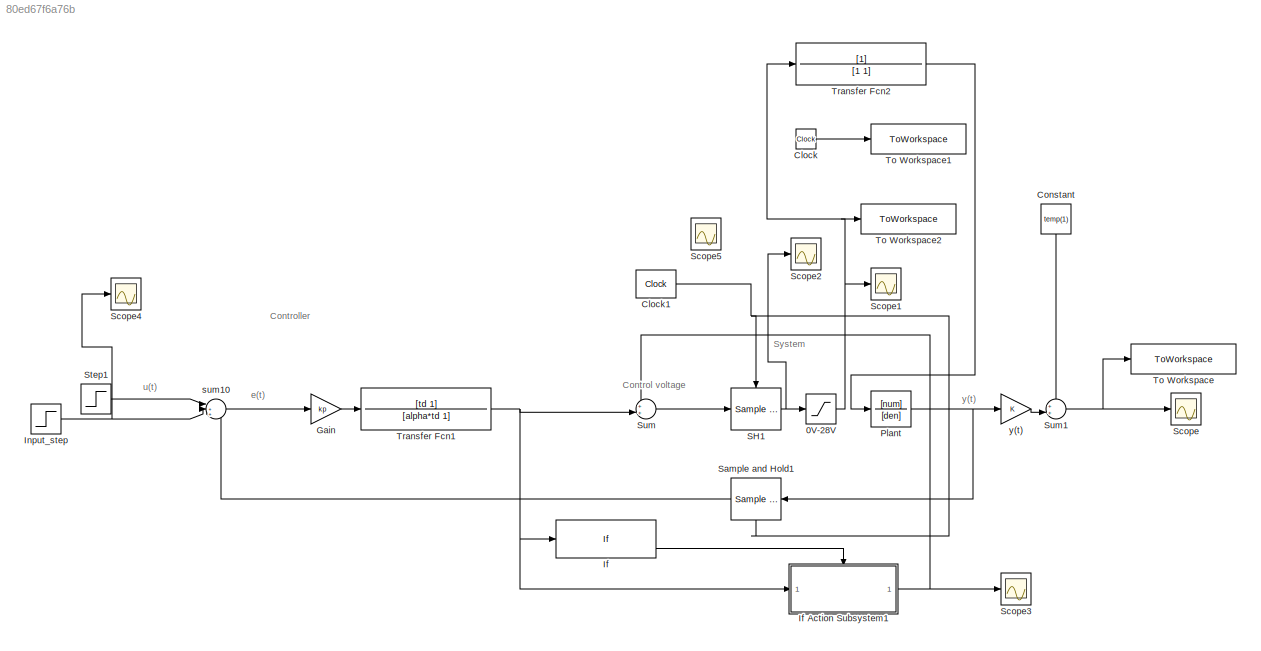
MODEL slx_80ed67f6a76b
KIND model
CONFIG AbsTol = auto
CONFIG EnableMultiTasking = off
CONFIG FixedStep = auto
CONFIG MaxStep = auto
CONFIG MinStep = auto
CONFIG RelTol = 1e-3
CONFIG SampleTimeConstraint = Unconstrained
CONFIG SolverName = VariableStepAuto
CONFIG StartTime = 0.0
CONFIG StopTime = 1200
BLOCK [Saturate] 0V-28V
  LowerLimit = 0
  UpperLimit = 28
BLOCK [Clock] Clock
  Commented = on
BLOCK [Reference] Clock1  REF=simulink_extras/Flip Flops/Clock
  Ports = [0, 1]
  SourceBlock = simulink_extras/Flip Flops/Clock
  SourceProductBaseCode = SL
  SourceType = Digital clock
BLOCK [Constant] Constant
  NameLocation = left
  Value = temp(1)
BLOCK [Gain] Gain
  Gain = kp
BLOCK [If] If
  ElseIfExpressions = u1 < 0
  IfExpression = u1 > 28
  Ports = [1, 3]
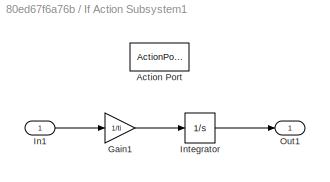
BLOCK [SubSystem] If Action Subsystem1
  Ports = [1, 1, 0, 0, 0, 0, 0, 1]
  RequestExecContextInheritance = off
  TreatAsAtomicUnit = on
BLOCK [ActionPort] If Action Subsystem1/Action Port
  ActionPortLabel = else
BLOCK [Gain] If Action Subsystem1/Gain1
  Gain = 1/ti
BLOCK [Inport] If Action Subsystem1/In1
BLOCK [Integrator] If Action Subsystem1/Integrator
  Ports = [1, 1]
BLOCK [Outport] If Action Subsystem1/Out1
BLOCK [Step] Input_step
  After = set_temp
  SampleTime = 0
BLOCK [TransferFcn] Plant
  Denominator = [den]
  Numerator = [num]
BLOCK [Reference] SH1  REF=dspsigops/Sample
and Hold
  Ports = [1, 1, 0, 1]
  SourceBlock = dspsigops/Sample\nand Hold
  SourceProductBaseCode = DS
  SourceType = Sample and Hold
BLOCK [Reference] Sample and Hold1  REF=dspsigops/Sample
and Hold
  NameLocation = top
  Ports = [1, 1, 0, 1]
  SourceBlock = dspsigops/Sample\nand Hold
  SourceProductBaseCode = DS
  SourceType = Sample and Hold
BLOCK [Scope] Scope
  Floating = off
  NumInputPorts = 1
  Ports = [1]
  ScopeSpecificationString = Simulink.scopes.TimeScopeBlockCfg('CurrentConfiguration', extmgr.ConfigurationSet(extmgr.Configuration('Core','General UI',true),extmgr.Configuration('Core','Source UI',true),extmgr.Configuration('Sources','WiredSimulink',true),extmgr.Configuration('Visuals','Time Domain',true,'SerializedDisplays',{struct('MinYLimReal','4.38013','MaxYLimReal','228.67881','YLabelReal','','MinYLimMag','4.38013','Max...<+1423ch>
BLOCK [Scope] Scope1
  Floating = off
  NumInputPorts = 1
  Ports = [1]
  ScopeSpecificationString = Simulink.scopes.TimeScopeBlockCfg('CurrentConfiguration', extmgr.ConfigurationSet(extmgr.Configuration('Core','General UI',true),extmgr.Configuration('Core','Source UI',true),extmgr.Configuration('Sources','WiredSimulink',true,'DataLoggingVariableName','ScopeData1'),extmgr.Configuration('Visuals','Time Domain',true,'SerializedDisplays',{struct('MinYLimReal','24.37071','MaxYLimReal','28.55336','YLa...<+1483ch>
BLOCK [Scope] Scope2
  Floating = off
  NumInputPorts = 1
  Ports = [1]
  ScopeSpecificationString = Simulink.scopes.TimeScopeBlockCfg('CurrentConfiguration', extmgr.ConfigurationSet(extmgr.Configuration('Core','General UI',true),extmgr.Configuration('Core','Source UI',true),extmgr.Configuration('Sources','WiredSimulink',true,'DataLoggingVariableName','ScopeData2'),extmgr.Configuration('Visuals','Time Domain',true,'SerializedDisplays',{struct('MinYLimReal','-192.48763','MaxYLimReal','1732.38869',...<+1510ch>
BLOCK [Scope] Scope3
  Floating = off
  NumInputPorts = 1
  Ports = [1]
  ScopeSpecificationString = Simulink.scopes.TimeScopeBlockCfg('CurrentConfiguration', extmgr.ConfigurationSet(extmgr.Configuration('Core','General UI',true),extmgr.Configuration('Core','Source UI',true),extmgr.Configuration('Sources','WiredSimulink',true,'DataLoggingVariableName','ScopeData3'),extmgr.Configuration('Visuals','Time Domain',true,'SerializedDisplays',{struct('MinYLimReal','-268.65544','MaxYLimReal','2417.89899',...<+1471ch>
BLOCK [Scope] Scope4
  Floating = off
  NumInputPorts = 1
  Ports = [1]
  ScopeSpecificationString = Simulink.scopes.TimeScopeBlockCfg('CurrentConfiguration', extmgr.ConfigurationSet(extmgr.Configuration('Core','General UI',true),extmgr.Configuration('Core','Source UI',true),extmgr.Configuration('Sources','WiredSimulink',true,'DataLoggingVariableName','ScopeData1'),extmgr.Configuration('Visuals','Time Domain',true,'SerializedDisplays',{struct('MinYLimReal','-21.64875','MaxYLimReal','194.83875','Y...<+1447ch>
BLOCK [Scope] Scope5
  Floating = off
  NumInputPorts = 1
  Ports = [1]
  ScopeSpecificationString = Simulink.scopes.TimeScopeBlockCfg('CurrentConfiguration', extmgr.ConfigurationSet(extmgr.Configuration('Core','General UI',true),extmgr.Configuration('Core','Source UI',true),extmgr.Configuration('Sources','WiredSimulink',true,'DataLoggingVariableName','ScopeData1'),extmgr.Configuration('Visuals','Time Domain',true,'SerializedDisplays',{struct('MinYLimReal','-21.64875','MaxYLimReal','194.83875','Y...<+1447ch>
BLOCK [Step] Step1
  After = -50
  Commented = on
  SampleTime = 0
  Time = 600
BLOCK [Sum] Sum
  Inputs = ++|
  Ports = [2, 1]
BLOCK [Sum] Sum1
  Inputs = ++|
  Ports = [2, 1]
BLOCK [ToWorkspace] To Workspace
  FixptAsFi = on
  MaxDataPoints = inf
  Ports = [1]
  SampleTime = -1
  SaveFormat = Timeseries
  VariableName = simout_temp
BLOCK [ToWorkspace] To Workspace1
  Commented = on
  FixptAsFi = on
  MaxDataPoints = inf
  Ports = [1]
  SampleTime = -1
  SaveFormat = Timeseries
  VariableName = simout_time
BLOCK [ToWorkspace] To Workspace2
  FixptAsFi = on
  MaxDataPoints = inf
  Ports = [1]
  SampleTime = -1
  SaveFormat = Timeseries
  VariableName = simout_ctrlV
BLOCK [TransferFcn] Transfer Fcn1
  Denominator = [alpha*td 1]
  NameLocation = top
  Numerator = [td 1]
BLOCK [TransferFcn] Transfer Fcn2
  NameLocation = top
BLOCK [Sum] sum10
  Inputs = |++-
  Ports = [3, 1]
BLOCK [Gain] y(t)
ANNOTATION (root): Control voltage
ANNOTATION (root): Controller
ANNOTATION (root): System
ANNOTATION (root): e(t)
ANNOTATION (root): u(t)
ANNOTATION (root): y(t)
NET 0V-28V:1 -> Scope1:1, To Workspace2:1, Transfer Fcn2:1
NET Clock1:1 -> SH1:trigger, Sample and Hold1:trigger
LINE Clock:1 -> To Workspace1:1
LINE Constant:1 -> Sum1:1
LINE Gain:1 -> Transfer Fcn1:1
LINE If Action Subsystem1/Gain1:1 -> If Action Subsystem1/Integrator:1
LINE If Action Subsystem1/In1:1 -> If Action Subsystem1/Gain1:1
LINE If Action Subsystem1/Integrator:1 -> If Action Subsystem1/Out1:1
NET If Action Subsystem1:1 -> Scope3:1, Sum:1
LINE If:3 -> If Action Subsystem1:ifaction
NET Input_step:1 -> Scope4:1, sum10:2
NET Plant:1 -> Sample and Hold1:1, y(t):1
NET SH1:1 -> 0V-28V:1, Scope2:1
LINE Sample and Hold1:1 -> sum10:3
LINE Step1:1 -> sum10:1
NET Sum1:1 -> Scope:1, To Workspace:1
LINE Sum:1 -> SH1:1
NET Transfer Fcn1:1 -> If Action Subsystem1:1, If:1, Sum:2
LINE Transfer Fcn2:1 -> Plant:1
LINE sum10:1 -> Gain:1
LINE y(t):1 -> Sum1:2
note: NET lines group one-source signal fan-out (src -> all destinations, sorted); 1:1 wires keep LINE
